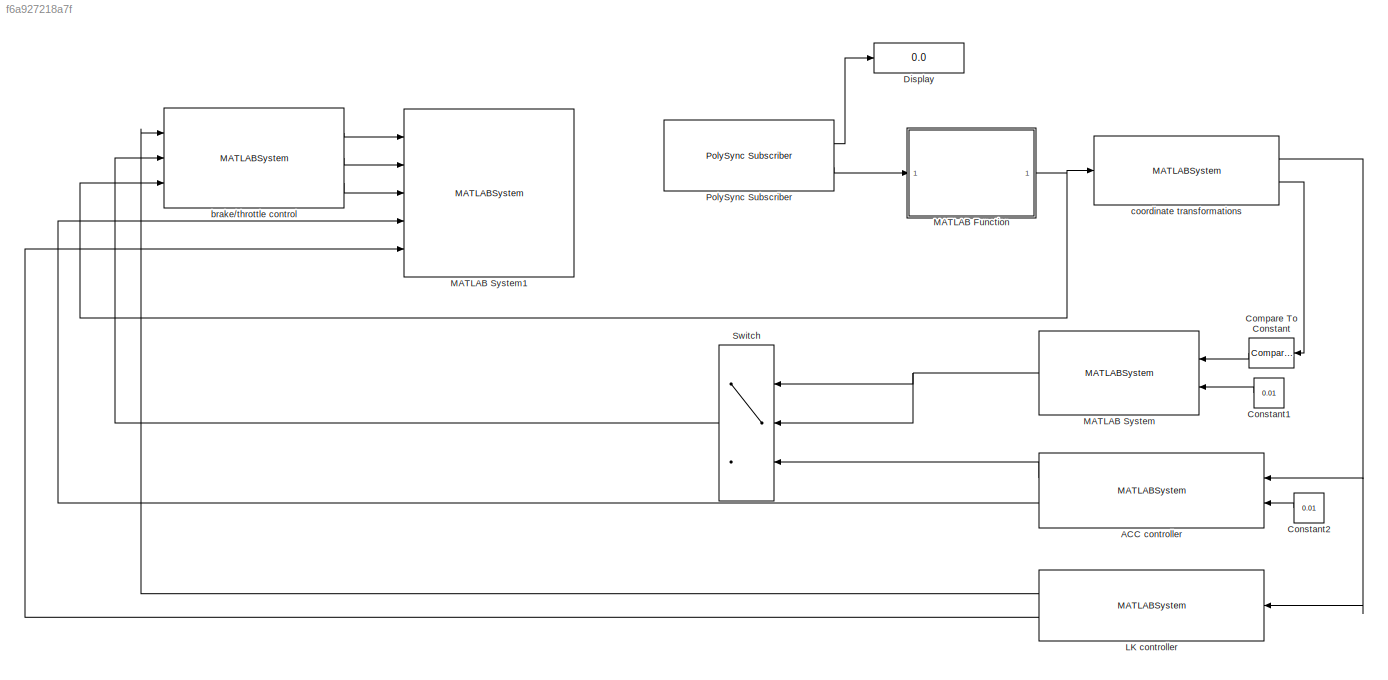
MODEL slx_f6a927218a7f
KIND model
CONFIG AbsTol = auto
CONFIG EnableMultiTasking = off
CONFIG FixedStep = 0.01
CONFIG MaxStep = auto
CONFIG MinStep = auto
CONFIG RelTol = 1e-3
CONFIG SampleTimeConstraint = Unconstrained
CONFIG Solver = FixedStepDiscrete
CONFIG SolverName = FixedStepDiscrete
CONFIG StartTime = 0.0
CONFIG StopTime = 10.0
BLOCK [MATLABSystem] ACC controller
  H_u = 0.0001
  H_x = diag([1 0.001])
  K_i = 50
  M = 1800
  MaskDisplay = disp('acc_pcis_controller');\nport_label('input',1,'lk_acc_state');\nport_label('input',2,'dt');\nport_label('output',1,'F_w');\nport_label('output',2,'control_info');
  MaskType = acc_pcis_controller
  Ports = [2, 2]
  SimulateUsing = Code generation
  System = acc_pcis_controller
  f0bar = 74.63
  f1bar = 40.59
  f_u = 0
  f_x = [-28/3.6;0]
  sol_opts = struct( 'DataType', 'double', 'MaxIter', 200, 'FeasibilityTol', 1e-6, 'IntegrityChecks', true )
  v_des = 28/3.6
  vl = 26/3.6
BLOCK [Reference] Compare To Constant  REF=simulink/Logic and Bit
Operations/Compare
To Constant
  Ports = [1, 1]
  SourceBlock = simulink/Logic and Bit\nOperations/Compare\nTo Constant
  SourceProductBaseCode = SL
  SourceProductName = Simulink
  SourceType = Compare To Constant
BLOCK [Constant] Constant1
  Value = 0.01
BLOCK [Constant] Constant2
  Value = 0.01
BLOCK [Display] Display
  Decimation = 1
  Ports = [1]
BLOCK [MATLABSystem] LK controller
  Caf = 140000
  Car = 120000
  H_u = 0.25
  H_x = diag([1 0 0.5 0])
  Iz = 3270.0
  M = 1800
  MaskDisplay = disp('lk_pcis_controller');\nport_label('input',1,'lk_state');\nport_label('output',1,'delta_f');\nport_label('output',2,'control_info');
  MaskType = lk_pcis_controller
  Ports = [1, 2]
  SimulateUsing = Code generation
  System = lk_pcis_controller
  f_u = 0
  f_x = [0;0;0;0]
  lf = 1.2
  lr = 1.650
  sol_opts = struct( 'DataType', 'double', 'MaxIter', 200, 'FeasibilityTol', 1e-6, 'IntegrityChecks', true )
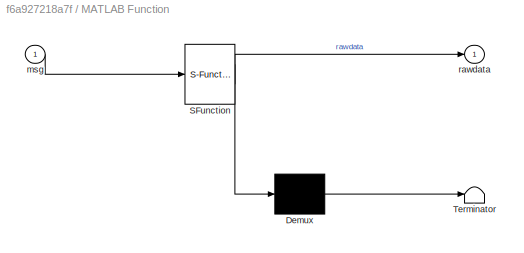
BLOCK [SubSystem] MATLAB Function
  ErrorFcn = Stateflow.Translate.translate
  PermitHierarchicalResolution = ExplicitOnly
  Ports = [1, 1]
  RequestExecContextInheritance = off
  SFBlockType = MATLAB Function
  TreatAsAtomicUnit = on
  Variant = off
BLOCK [Demux] MATLAB Function/ Demux 
  Outputs = 1
  Ports = [1, 1]
BLOCK [S-Function] MATLAB Function/ SFunction 
  EnableBusSupport = on
  FunctionName = sf_sfun
  PortCounts = [1 2]
  Ports = [1, 2]
  SFcnIsStateOwnerBlock = off
  SFunctionDeploymentMode = off
  Tag = Stateflow S-Function polysync_simulink 2
BLOCK [Terminator] MATLAB Function/ Terminator 
BLOCK [Inport] MATLAB Function/msg
  IconDisplay = Port number
BLOCK [Outport] MATLAB Function/rawdata
  IconDisplay = Port number
BLOCK [MATLABSystem] MATLAB System
  MaskDisplay = disp('brake_ramp');\nport_label('input',1,'is_active');\nport_label('input',2,'dt');\nport_label('output',1,'braking');
  MaskType = brake_ramp
  Ports = [2, 1]
  SimulateUsing = Code generation
  System = brake_ramp
  end_ramp = 2000
  end_time = 10
BLOCK [MATLABSystem] MATLAB System1
  MaskDisplay = disp('polysync_publisher');\nport_label('input',1,'steering');\nport_label('input',2,'throttle');\nport_label('input',3,'brake');\nport_label('input',4,'cinfo_acc');\nport_label('input',5,'cinfo_lk');
  MaskType = polysync_publisher
  Ports = [5]
  SimulateUsing = Code generation
  System = polysync_publisher
BLOCK [Reference] PolySync Subscriber  REF=PolySyncLibrary/PolySync Subscriber
  Ports = [0, 2]
  SourceBlock = PolySyncLibrary/PolySync Subscriber
  SourceProductName = PolySync
  SourceType = polysync.Subscriber
BLOCK [Switch] Switch
  Criteria = u2 > Threshold
  InputSameDT = off
  SaturateOnIntegerOverflow = off
BLOCK [MATLABSystem] brake//throttle control
  MaskDisplay = disp('car_inputs');\nport_label('input',1,'delta_f');\nport_label('input',2,'F_w');\nport_label('input',3,'rawdata');\nport_label('output',1,'steering_angle');\nport_label('output',2,'throttle');\nport_label('output',3,'braking');
  MaskType = car_inputs
  Ports = [3, 3]
  SimulateUsing = Code generation
  System = car_inputs
  brake_gain = 150/3000
  inv_engine_map_file = inverse_engine_map.mat
  steer_ratio = 16.51
  trans_eff = 0.79
  wheel_rad = 0.392
BLOCK [MATLABSystem] coordinate transformations
  MaskDisplay = disp('road');\nport_label('input',1,'data');\nport_label('output',1,'lk_acc_state');\nport_label('output',2,'road_left');
  MaskType = road
  N_interp = 10
  N_path = 3
  Ports = [1, 2]
  SimulateUsing = Code generation
  System = road
  circular = 1
  dt = 0.1
  h0 = 1
  lat0 = 42.30095833
  long0 = -83.69758056
  pathfile = <userpath>/mkz/mcity/mcity_outer.ascii
LINE ACC controller:1 -> Switch:3
LINE ACC controller:2 -> MATLAB System1:4
LINE Compare To Constant:1 -> MATLAB System:1
LINE Constant1:1 -> MATLAB System:2
LINE Constant2:1 -> ACC controller:2
LINE LK controller:1 -> brake//throttle control:1
LINE LK controller:2 -> MATLAB System1:5
NET MATLAB Function:1 -> brake//throttle control:3, coordinate transformations:1
NET MATLAB System:1 -> Switch:1, Switch:2
LINE PolySync Subscriber:1 -> Display:1
LINE PolySync Subscriber:2 -> MATLAB Function:1
LINE Switch:1 -> brake//throttle control:2
LINE brake//throttle control:1 -> MATLAB System1:1
LINE brake//throttle control:2 -> MATLAB System1:2
LINE brake//throttle control:3 -> MATLAB System1:3
NET coordinate transformations:1 -> ACC controller:1, LK controller:1
LINE coordinate transformations:2 -> Compare To Constant:1
note: NET lines group one-source signal fan-out (src -> all destinations, sorted); 1:1 wires keep LINE
CHART MATLAB Function states=1 transitions=1
  STATE_LABEL 'eML_blk_kernel()'
  STATE_LABEL 'SCRIPT:\nfunction rawdata = fcn(msg)\n    rawdata.latitude = msg.Latitude;\t\t\t% radians\n    rawdata.longitude = msg.Longitude;          % radians\n    rawdata.el = msg.Altitude;\t\t\t\t\t% m\n    rawdata.Yaw = msg.Heading;\t\t\t\t\t% radians\n    rawdata.YawRate = msg.RotationRate(3);\t\t% rad/s\n    rawdata.Vx = msg.Velocity(1);\t\t\t\t% m/s\n    rawdata.Vy = msg.Velocity(2);\t\t\t\t% m/s\n    rawdata.x_CG = -0.99;\t\t\t\t\t\t% m\n...<+737ch>'
